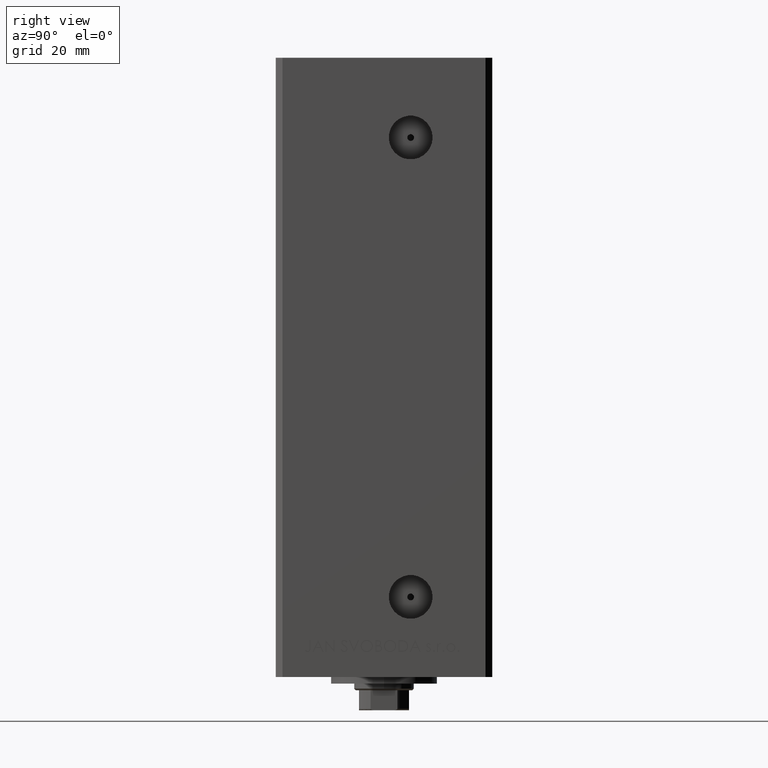
[diagram: clean part render]
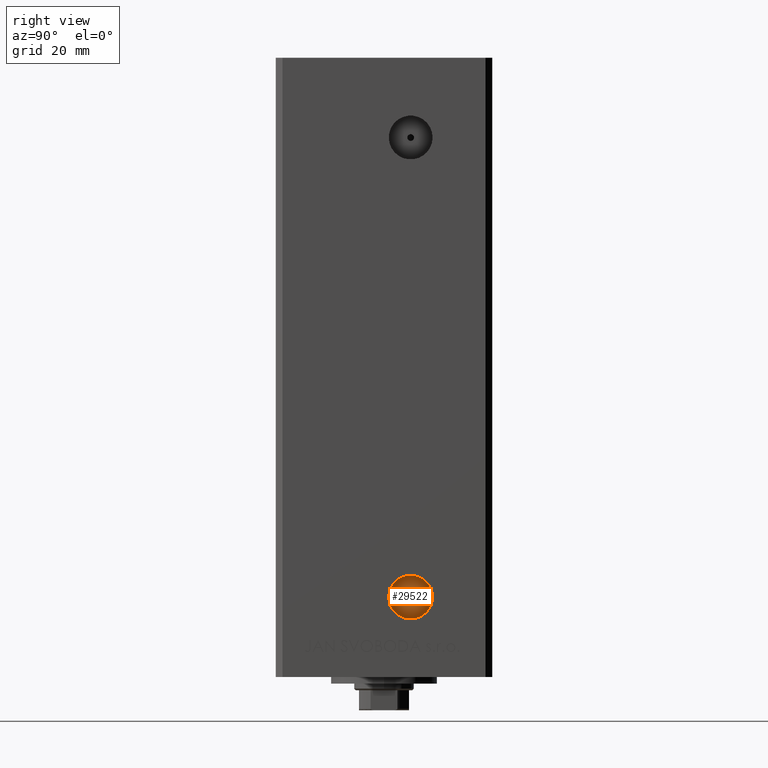
[diagram: same view with one face highlighted and labeled with its STEP entity id]
A machine part, right view. The second image highlights one B-rep face of the part: STEP entity #29522.
In plain terms, the highlighted planar face has unit normal (1, -0, 0).
Its self-contained STEP definition (entity closure, byte-faithful):
#503 = DIRECTION ( 'NONE',  ( 2.275047181608927644E-16, 1.000000000000000000, 0.000000000000000000 ) ) ;
#1429 = ORIENTED_EDGE ( 'NONE', *, *, #49236, .T. ) ;
#3156 = ORIENTED_EDGE ( 'NONE', *, *, #25947, .F. ) ;
#3579 = DIRECTION ( 'NONE',  ( 1.000000000000000000, -2.275047181608927644E-16, 0.000000000000000000 ) ) ;
#5102 = ORIENTED_EDGE ( 'NONE', *, *, #33557, .T. ) ;
#6237 = DIRECTION ( 'NONE',  ( 0.000000000000000000, 1.000000000000000000, 0.000000000000000000 ) ) ;
#6570 = CIRCLE ( 'NONE', #34406, 0.9999999999999991118 ) ;
#7827 = DIRECTION ( 'NONE',  ( 0.000000000000000000, 1.000000000000000000, 0.000000000000000000 ) ) ;
#9356 = FACE_BOUND ( 'NONE', #48506, .T. ) ;
#9422 = CARTESIAN_POINT ( 'NONE',  ( 24.50000000000000000, 1.419999999999989049, 8.999999999999994671 ) ) ;
#9481 = VERTEX_POINT ( 'NONE', #33400 ) ;
#9917 = AXIS2_PLACEMENT_3D ( 'NONE', #33664, #46103, #503 ) ;
#11744 = VERTEX_POINT ( 'NONE', #9422 ) ;
#12874 = DIRECTION ( 'NONE',  ( 0.000000000000000000, 1.000000000000000000, 0.000000000000000000 ) ) ;
#14504 = VERTEX_POINT ( 'NONE', #39616 ) ;
#14843 = DIRECTION ( 'NONE',  ( 1.000000000000000000, -2.275047181608927644E-16, 0.000000000000000000 ) ) ;
#15084 = CIRCLE ( 'NONE', #41324, 6.580000000000006288 ) ;
#17028 = ORIENTED_EDGE ( 'NONE', *, *, #25325, .F. ) ;
#22319 = DIRECTION ( 'NONE',  ( 0.000000000000000000, 1.000000000000000000, 0.000000000000000000 ) ) ;
#24887 = CIRCLE ( 'NONE', #46358, 0.9999999999999991118 ) ;
#25325 = EDGE_CURVE ( 'NONE', #45437, #9481, #6570, .T. ) ;
#25947 = EDGE_CURVE ( 'NONE', #9481, #45437, #24887, .T. ) ;
#28070 = DIRECTION ( 'NONE',  ( 1.000000000000000000, -2.275047181608927644E-16, 0.000000000000000000 ) ) ;
#28683 = DIRECTION ( 'NONE',  ( 1.000000000000000000, -2.275047181608927644E-16, 0.000000000000000000 ) ) ;
#29522 = ADVANCED_FACE ( 'NONE', ( #9356, #39739 ), #45864, .T. ) ;
#33400 = CARTESIAN_POINT ( 'NONE',  ( 24.50000000000000000, 6.999999999999994671, 8.999999999999994671 ) ) ;
#33487 = CARTESIAN_POINT ( 'NONE',  ( 24.50000000000000000, 7.999999999999994671, 8.999999999999994671 ) ) ;
#33557 = EDGE_CURVE ( 'NONE', #11744, #14504, #42511, .T. ) ;
#33664 = CARTESIAN_POINT ( 'NONE',  ( 24.50000000000000000, 7.999999999999994671, 8.999999999999994671 ) ) ;
#34000 = CARTESIAN_POINT ( 'NONE',  ( 24.50000000000000000, 7.999999999999994671, 8.999999999999994671 ) ) ;
#34406 = AXIS2_PLACEMENT_3D ( 'NONE', #43382, #28683, #6237 ) ;
#39616 = CARTESIAN_POINT ( 'NONE',  ( 24.50000000000000000, 14.58000000000000007, 8.999999999999994671 ) ) ;
#39739 = FACE_OUTER_BOUND ( 'NONE', #43687, .T. ) ;
#41324 = AXIS2_PLACEMENT_3D ( 'NONE', #33487, #3579, #7827 ) ;
#42501 = CARTESIAN_POINT ( 'NONE',  ( 24.50000000000000000, 8.999999999999994671, 8.999999999999994671 ) ) ;
#42511 = CIRCLE ( 'NONE', #47324, 6.580000000000006288 ) ;
#43382 = CARTESIAN_POINT ( 'NONE',  ( 24.50000000000000000, 7.999999999999994671, 8.999999999999994671 ) ) ;
#43687 = EDGE_LOOP ( 'NONE', ( #1429, #5102 ) ) ;
#45437 = VERTEX_POINT ( 'NONE', #42501 ) ;
#45864 = PLANE ( 'NONE',  #9917 ) ;
#46103 = DIRECTION ( 'NONE',  ( 1.000000000000000000, -2.275047181608927644E-16, 0.000000000000000000 ) ) ;
#46358 = AXIS2_PLACEMENT_3D ( 'NONE', #47719, #28070, #12874 ) ;
#47324 = AXIS2_PLACEMENT_3D ( 'NONE', #34000, #14843, #22319 ) ;
#47719 = CARTESIAN_POINT ( 'NONE',  ( 24.50000000000000000, 7.999999999999994671, 8.999999999999994671 ) ) ;
#48506 = EDGE_LOOP ( 'NONE', ( #17028, #3156 ) ) ;
#49236 = EDGE_CURVE ( 'NONE', #14504, #11744, #15084, .T. ) ;